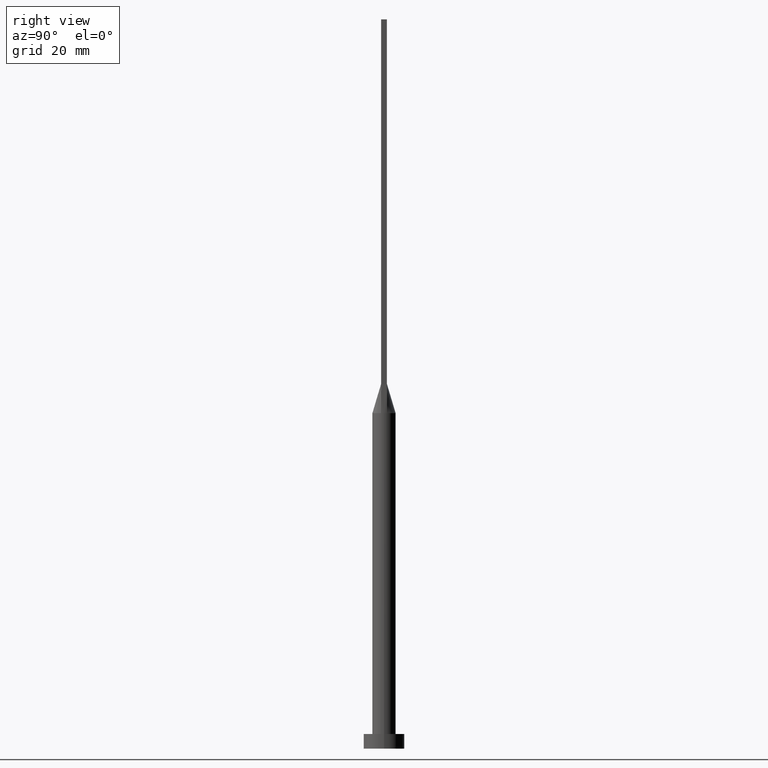
[diagram: clean part render]
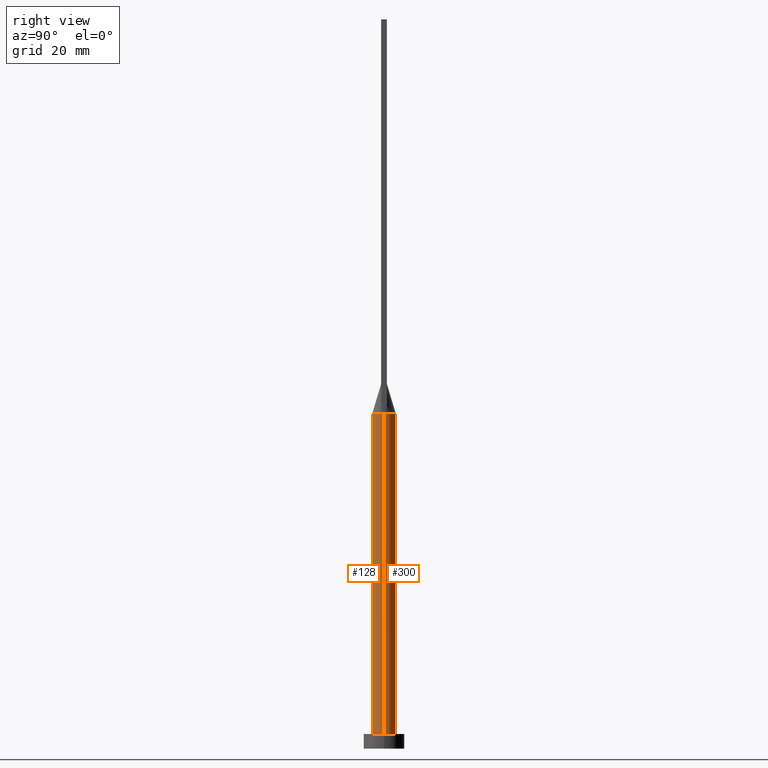
[diagram: same view with one multi-face feature highlighted, each face labeled with its STEP entity id]
A machine part, right view. The highlighted faces form ONE feature: a constant-radius fillet chain: 2 tangent blend faces with common blend radius 4 mm. The faces share edges in the B-rep.
Their STEP definitions:
[1] entity #128 (Cylinder):
#10 = ORIENTED_EDGE ( 'NONE', *, *, #262, .F. ) ;
#30 = EDGE_CURVE ( 'NONE', #131, #538, #227, .T. ) ;
#33 = ORIENTED_EDGE ( 'NONE', *, *, #504, .T. ) ;
#37 = LINE ( 'NONE', #389, #294 ) ;
#42 = CARTESIAN_POINT ( 'NONE',  ( 0.000000000000000000, 0.000000000000000000, 115.0000000000000000 ) ) ;
#47 = ORIENTED_EDGE ( 'NONE', *, *, #175, .T. ) ;
#74 = AXIS2_PLACEMENT_3D ( 'NONE', #42, #309, #437 ) ;
#91 = ORIENTED_EDGE ( 'NONE', *, *, #140, .F. ) ;
#93 = VECTOR ( 'NONE', #546, 1000.000000000000000 ) ;
#105 = VERTEX_POINT ( 'NONE', #405 ) ;
#128 = ADVANCED_FACE ( 'NONE', ( #375 ), #556, .T. ) ;
#129 = CARTESIAN_POINT ( 'NONE',  ( 4.000000000000000000, -1.256865613583667397E-17, 114.9999999999999858 ) ) ;
#131 = VERTEX_POINT ( 'NONE', #129 ) ;
#140 = EDGE_CURVE ( 'NONE', #492, #170, #245, .T. ) ;
#154 = CARTESIAN_POINT ( 'NONE',  ( 0.000000000000000000, 0.000000000000000000, 115.0000000000000000 ) ) ;
#170 = VERTEX_POINT ( 'NONE', #426 ) ;
#175 = EDGE_CURVE ( 'NONE', #105, #506, #37, .T. ) ;
#207 = AXIS2_PLACEMENT_3D ( 'NONE', #564, #554, #243 ) ;
#227 = LINE ( 'NONE', #402, #93 ) ;
#243 = DIRECTION ( 'NONE',  ( 1.000000000000000000, -6.217248937900876626E-15, 0.000000000000000000 ) ) ;
#245 = CIRCLE ( 'NONE', #74, 4.000000000000000000 ) ;
#252 = ORIENTED_EDGE ( 'NONE', *, *, #460, .F. ) ;
#262 = EDGE_CURVE ( 'NONE', #105, #492, #497, .T. ) ;
#288 = DIRECTION ( 'NONE',  ( 0.000000000000000000, 0.000000000000000000, 1.000000000000000000 ) ) ;
#294 = VECTOR ( 'NONE', #518, 1000.000000000000000 ) ;
#309 = DIRECTION ( 'NONE',  ( 0.000000000000000000, 0.000000000000000000, 1.000000000000000000 ) ) ;
#313 = EDGE_LOOP ( 'NONE', ( #478, #252, #91, #10, #47, #33 ) ) ;
#328 = CIRCLE ( 'NONE', #445, 4.000000000000000000 ) ;
#332 = CARTESIAN_POINT ( 'NONE',  ( 0.000000000000000000, 0.000000000000000000, 5.000000000000000000 ) ) ;
#335 = DIRECTION ( 'NONE',  ( 1.000000000000000000, 0.000000000000000000, 0.000000000000000000 ) ) ;
#337 = CARTESIAN_POINT ( 'NONE',  ( -3.865220763612065902, -1.030726602927787949, 115.0000000000000000 ) ) ;
#345 = CARTESIAN_POINT ( 'NONE',  ( 4.000000000000000000, 4.898587196589412829E-16, 5.000000000000000000 ) ) ;
#375 = FACE_OUTER_BOUND ( 'NONE', #313, .T. ) ;
#380 = DIRECTION ( 'NONE',  ( 0.000000000000000000, 0.000000000000000000, 1.000000000000000000 ) ) ;
#389 = CARTESIAN_POINT ( 'NONE',  ( -4.000000000000000000, 0.000000000000000000, 115.0000000000000000 ) ) ;
#402 = CARTESIAN_POINT ( 'NONE',  ( 4.000000000000000000, 4.898587196589412829E-16, 115.0000000000000000 ) ) ;
#405 = CARTESIAN_POINT ( 'NONE',  ( -4.000000000000000000, -2.459132308497027359E-16, 114.9999999999999858 ) ) ;
#418 = CARTESIAN_POINT ( 'NONE',  ( -4.000000000000000000, 0.000000000000000000, 5.000000000000000000 ) ) ;
#426 = CARTESIAN_POINT ( 'NONE',  ( 3.865244591400370577, -1.030732999276501527, 115.0000000000000000 ) ) ;
#429 = AXIS2_PLACEMENT_3D ( 'NONE', #154, #473, #574 ) ;
#437 = DIRECTION ( 'NONE',  ( 1.000000000000000000, 0.000000000000000000, 0.000000000000000000 ) ) ;
#445 = AXIS2_PLACEMENT_3D ( 'NONE', #332, #288, #335 ) ;
#460 = EDGE_CURVE ( 'NONE', #170, #131, #551, .T. ) ;
#468 = AXIS2_PLACEMENT_3D ( 'NONE', #525, #380, #528 ) ;
#473 = DIRECTION ( 'NONE',  ( -0.000000000000000000, -0.000000000000000000, -1.000000000000000000 ) ) ;
#478 = ORIENTED_EDGE ( 'NONE', *, *, #30, .F. ) ;
#492 = VERTEX_POINT ( 'NONE', #337 ) ;
#497 = CIRCLE ( 'NONE', #468, 4.000000000000000000 ) ;
#504 = EDGE_CURVE ( 'NONE', #506, #538, #328, .T. ) ;
#506 = VERTEX_POINT ( 'NONE', #418 ) ;
#518 = DIRECTION ( 'NONE',  ( -0.000000000000000000, -0.000000000000000000, -1.000000000000000000 ) ) ;
#525 = CARTESIAN_POINT ( 'NONE',  ( 0.000000000000000000, 0.000000000000000000, 115.0000000000000000 ) ) ;
#528 = DIRECTION ( 'NONE',  ( 1.000000000000000000, 0.000000000000000000, 0.000000000000000000 ) ) ;
#538 = VERTEX_POINT ( 'NONE', #345 ) ;
#546 = DIRECTION ( 'NONE',  ( -0.000000000000000000, -0.000000000000000000, -1.000000000000000000 ) ) ;
#551 = CIRCLE ( 'NONE', #207, 4.000000000000000000 ) ;
#554 = DIRECTION ( 'NONE',  ( 0.000000000000000000, 0.000000000000000000, 1.000000000000000000 ) ) ;
#556 = CYLINDRICAL_SURFACE ( 'NONE', #429, 4.000000000000000000 ) ;
#564 = CARTESIAN_POINT ( 'NONE',  ( 0.000000000000000000, 0.000000000000000000, 115.0000000000000000 ) ) ;
#574 = DIRECTION ( 'NONE',  ( -1.000000000000000000, 0.000000000000000000, 0.000000000000000000 ) ) ;
[2] entity #300 (Cylinder):
#14 = EDGE_CURVE ( 'NONE', #131, #164, #575, .T. ) ;
#29 = DIRECTION ( 'NONE',  ( 1.000000000000000000, 0.000000000000000000, 0.000000000000000000 ) ) ;
#30 = EDGE_CURVE ( 'NONE', #131, #538, #227, .T. ) ;
#36 = CARTESIAN_POINT ( 'NONE',  ( 0.000000000000000000, 0.000000000000000000, 5.000000000000000000 ) ) ;
#37 = LINE ( 'NONE', #389, #294 ) ;
#75 = CARTESIAN_POINT ( 'NONE',  ( -3.865236553917747120, 1.030730781768519622, 115.0000000000000000 ) ) ;
#77 = DIRECTION ( 'NONE',  ( 0.000000000000000000, 0.000000000000000000, 1.000000000000000000 ) ) ;
#93 = VECTOR ( 'NONE', #546, 1000.000000000000000 ) ;
#100 = AXIS2_PLACEMENT_3D ( 'NONE', #569, #526, #126 ) ;
#105 = VERTEX_POINT ( 'NONE', #405 ) ;
#106 = CYLINDRICAL_SURFACE ( 'NONE', #150, 4.000000000000000000 ) ;
#111 = CARTESIAN_POINT ( 'NONE',  ( -2.346407003458401253, 3.270103945996944095, 114.9999999999999858 ) ) ;
#123 = CARTESIAN_POINT ( 'NONE',  ( -3.865236553917747120, 1.030730781768519622, 115.0000000000000000 ) ) ;
#124 = CARTESIAN_POINT ( 'NONE',  ( 3.865212754195084699, 1.030724393897464841, 115.0000000000000000 ) ) ;
#125 = AXIS2_PLACEMENT_3D ( 'NONE', #302, #172, #258 ) ;
#126 = DIRECTION ( 'NONE',  ( 1.000000000000000000, 0.000000000000000000, 0.000000000000000000 ) ) ;
#129 = CARTESIAN_POINT ( 'NONE',  ( 4.000000000000000000, -1.256865613583667397E-17, 114.9999999999999858 ) ) ;
#131 = VERTEX_POINT ( 'NONE', #129 ) ;
#150 = AXIS2_PLACEMENT_3D ( 'NONE', #404, #285, #322 ) ;
#158 = CARTESIAN_POINT ( 'NONE',  ( 1.940702937457743582, 3.532374760555930582, 115.0000000000000000 ) ) ;
#164 = VERTEX_POINT ( 'NONE', #124 ) ;
#165 = CARTESIAN_POINT ( 'NONE',  ( -3.267840578657194239, 2.338604872288698289, 114.9999999999999858 ) ) ;
#168 = EDGE_CURVE ( 'NONE', #474, #105, #218, .T. ) ;
#172 = DIRECTION ( 'NONE',  ( 0.000000000000000000, 0.000000000000000000, 1.000000000000000000 ) ) ;
#175 = EDGE_CURVE ( 'NONE', #105, #506, #37, .T. ) ;
#179 = ORIENTED_EDGE ( 'NONE', *, *, #524, .F. ) ;
#190 = FACE_OUTER_BOUND ( 'NONE', #259, .T. ) ;
#202 = CARTESIAN_POINT ( 'NONE',  ( 3.781952206537764205, 1.341853921743403788, 114.9999999999999858 ) ) ;
#218 = CIRCLE ( 'NONE', #125, 4.000000000000000000 ) ;
#227 = LINE ( 'NONE', #402, #93 ) ;
#232 = ORIENTED_EDGE ( 'NONE', *, *, #175, .F. ) ;
#239 = CARTESIAN_POINT ( 'NONE',  ( -3.009488128496037529, 2.672487015486668671, 114.9999999999999858 ) ) ;
#247 = CARTESIAN_POINT ( 'NONE',  ( 3.865212754195084699, 1.030724393897464841, 115.0000000000000000 ) ) ;
#250 = CARTESIAN_POINT ( 'NONE',  ( 3.653499896451231521, 1.673258289339057958, 115.0000000000000142 ) ) ;
#253 = CARTESIAN_POINT ( 'NONE',  ( -0.5121855420560009753, 4.000000000000000888, 114.9999999999999858 ) ) ;
#258 = DIRECTION ( 'NONE',  ( 1.000000000000000000, 0.000000000000000000, 0.000000000000000000 ) ) ;
#259 = EDGE_LOOP ( 'NONE', ( #494, #298, #344, #232, #581, #179 ) ) ;
#285 = DIRECTION ( 'NONE',  ( -0.000000000000000000, -0.000000000000000000, -1.000000000000000000 ) ) ;
#294 = VECTOR ( 'NONE', #518, 1000.000000000000000 ) ;
#298 = ORIENTED_EDGE ( 'NONE', *, *, #30, .T. ) ;
#300 = ADVANCED_FACE ( 'NONE', ( #190 ), #106, .T. ) ;
#302 = CARTESIAN_POINT ( 'NONE',  ( 0.000000000000000000, 0.000000000000000000, 115.0000000000000000 ) ) ;
#304 = CARTESIAN_POINT ( 'NONE',  ( -3.653499896451231521, 1.673258289339058180, 115.0000000000000284 ) ) ;
#322 = DIRECTION ( 'NONE',  ( -1.000000000000000000, 0.000000000000000000, 0.000000000000000000 ) ) ;
#330 = CARTESIAN_POINT ( 'NONE',  ( 3.267840578657193795, 2.338604872288698289, 114.9999999999999858 ) ) ;
#344 = ORIENTED_EDGE ( 'NONE', *, *, #391, .T. ) ;
#345 = CARTESIAN_POINT ( 'NONE',  ( 4.000000000000000000, 4.898587196589412829E-16, 5.000000000000000000 ) ) ;
#378 = CARTESIAN_POINT ( 'NONE',  ( 2.346407003458400808, 3.270103945996944983, 114.9999999999999858 ) ) ;
#389 = CARTESIAN_POINT ( 'NONE',  ( -4.000000000000000000, 0.000000000000000000, 115.0000000000000000 ) ) ;
#391 = EDGE_CURVE ( 'NONE', #538, #506, #527, .T. ) ;
#402 = CARTESIAN_POINT ( 'NONE',  ( 4.000000000000000000, 4.898587196589412829E-16, 115.0000000000000000 ) ) ;
#404 = CARTESIAN_POINT ( 'NONE',  ( 0.000000000000000000, 0.000000000000000000, 115.0000000000000000 ) ) ;
#405 = CARTESIAN_POINT ( 'NONE',  ( -4.000000000000000000, -2.459132308497027359E-16, 114.9999999999999858 ) ) ;
#418 = CARTESIAN_POINT ( 'NONE',  ( -4.000000000000000000, 0.000000000000000000, 5.000000000000000000 ) ) ;
#428 = CARTESIAN_POINT ( 'NONE',  ( -1.023074425454088221, 3.898373771260455811, 114.9999999999999858 ) ) ;
#462 = CARTESIAN_POINT ( 'NONE',  ( 3.009488128496037085, 2.672487015486669115, 114.9999999999999858 ) ) ;
#474 = VERTEX_POINT ( 'NONE', #75 ) ;
#475 = CARTESIAN_POINT ( 'NONE',  ( 1.023074425454087999, 3.898373771260456255, 114.9999999999999858 ) ) ;
#479 = CARTESIAN_POINT ( 'NONE',  ( -3.781952206537765537, 1.341853921743403788, 115.0000000000000284 ) ) ;
#480 = AXIS2_PLACEMENT_3D ( 'NONE', #36, #77, #29 ) ;
#494 = ORIENTED_EDGE ( 'NONE', *, *, #14, .F. ) ;
#506 = VERTEX_POINT ( 'NONE', #418 ) ;
#509 = CARTESIAN_POINT ( 'NONE',  ( -1.940702937457743138, 3.532374760555930582, 114.9999999999999858 ) ) ;
#518 = DIRECTION ( 'NONE',  ( -0.000000000000000000, -0.000000000000000000, -1.000000000000000000 ) ) ;
#520 = CARTESIAN_POINT ( 'NONE',  ( 0.5121855420560009753, 4.000000000000000888, 115.0000000000000142 ) ) ;
#524 = EDGE_CURVE ( 'NONE', #164, #474, #548, .T. ) ;
#526 = DIRECTION ( 'NONE',  ( 0.000000000000000000, 0.000000000000000000, 1.000000000000000000 ) ) ;
#527 = CIRCLE ( 'NONE', #480, 4.000000000000000000 ) ;
#538 = VERTEX_POINT ( 'NONE', #345 ) ;
#546 = DIRECTION ( 'NONE',  ( -0.000000000000000000, -0.000000000000000000, -1.000000000000000000 ) ) ;
#548 = B_SPLINE_CURVE_WITH_KNOTS ( 'NONE', 3,
 ( #247, #202, #250, #330, #462, #378, #158, #475, #520, #253, #428, #509, #111, #239, #165, #304, #479, #123 ),
 .UNSPECIFIED., .F., .F.,
 ( 4, 2, 2, 2, 2, 2, 2, 2, 4 ),
 ( 0.000000000000000000, 0.1250000000000000000, 0.2500000000000000000, 0.3750000000000000000, 0.5000000000000000000, 0.6250000000000000000, 0.7500000000000000000, 0.8750000000000000000, 1.000000000000000000 ),
 .UNSPECIFIED. ) ;
#569 = CARTESIAN_POINT ( 'NONE',  ( 0.000000000000000000, 0.000000000000000000, 115.0000000000000000 ) ) ;
#575 = CIRCLE ( 'NONE', #100, 4.000000000000000000 ) ;
#581 = ORIENTED_EDGE ( 'NONE', *, *, #168, .F. ) ;